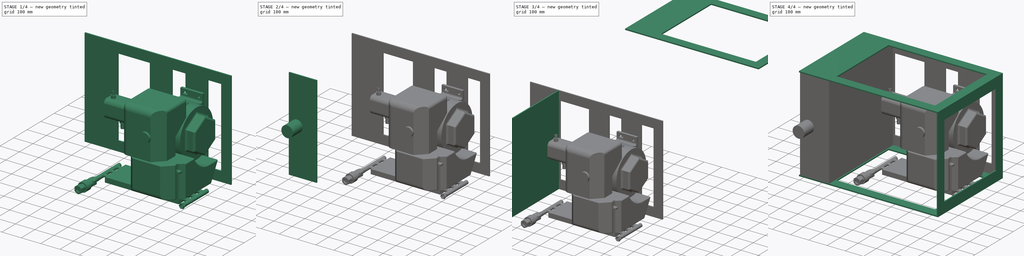
[diagram: build sequence overview — one tinted view per stage of 4, left to right]
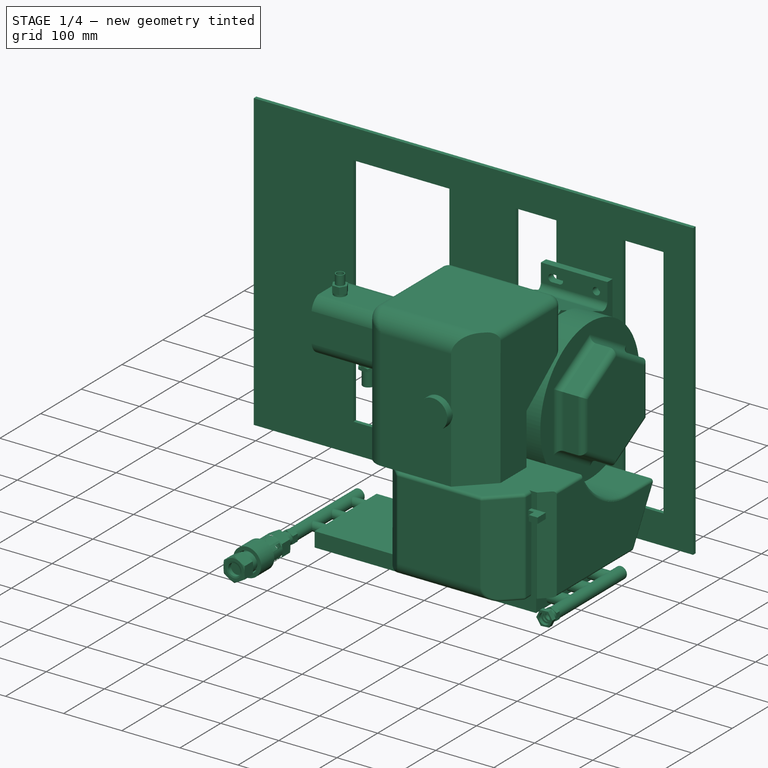
[diagram: stage 1 of 4 — iso view after this stage's code; geometry added in this stage tinted green]
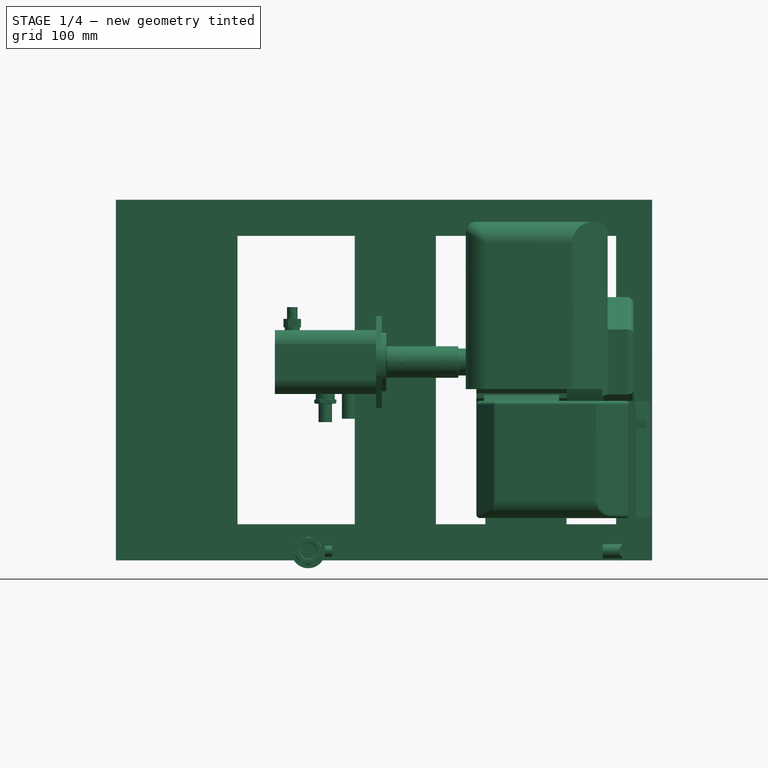
[diagram: stage 1 of 4 — front view after this stage's code; geometry added in this stage tinted green]
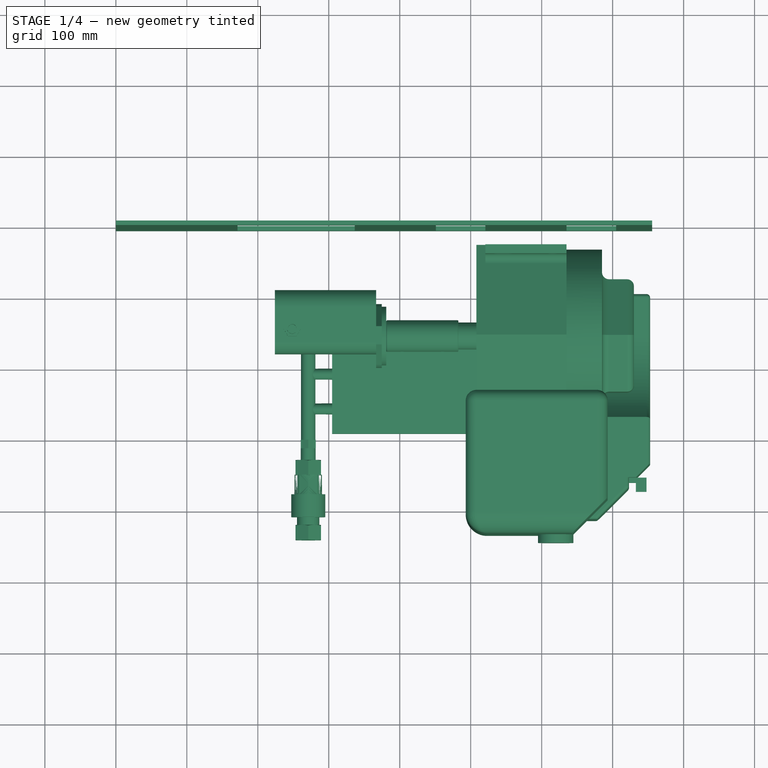
[diagram: stage 1 of 4 — top view after this stage's code; geometry added in this stage tinted green]
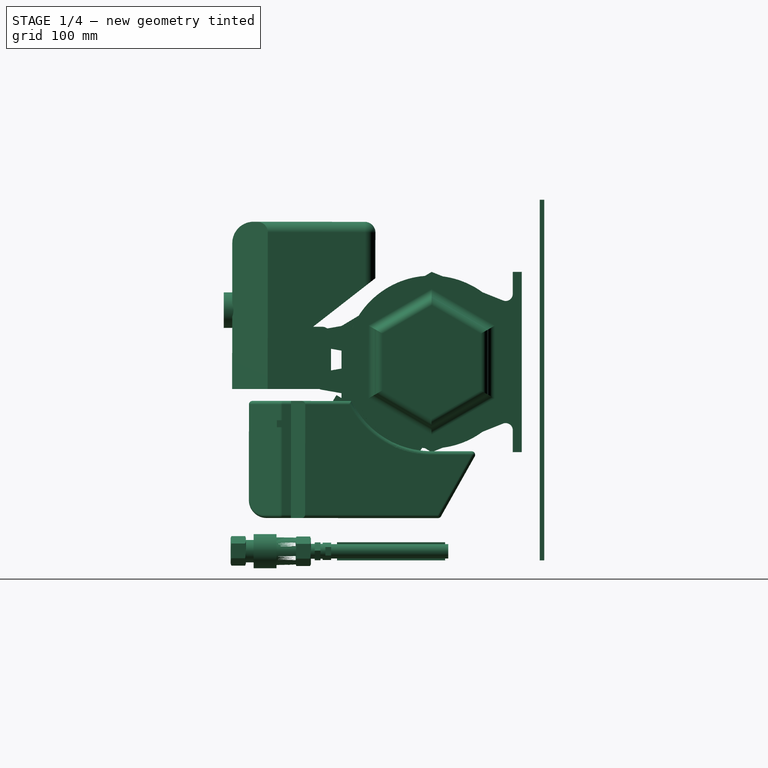
[diagram: stage 1 of 4 — right view after this stage's code; geometry added in this stage tinted green]
FCSTD DOCUMENT  (FreeCAD 0.16R6712 (Git))
Label: powercubeframe
License: All rights reserved
LicenseURL: http://en.wikipedia.org/wiki/All_rights_reserved
objects: App::FeaturePython×44, Part::Feature×11, Part::FeaturePython×7, Sketcher::SketchObject×4, PartDesign::Pad×4, Part::MultiFuse×2, Part::Cylinder×1
note: 33 computed .brp shape members not serialized (recipe doc carries the construction recipe); baked Part::Feature solids carry a one-line shape summary decoded from their .brp

FEATURE [App::FeaturePython] planeConstraint17  label="planeConstraint17 tank cap to top"  # a2plus constraint (typed FeaturePython)
  Object1 = Cylinder
  Object2 = Clone004
  SubElement1 = Face2
  SubElement2 = Face6
  Type = plane
  directionConstraint = 1
  offset = 0
FEATURE [Sketcher::SketchObject] Sketch003  label="Bottom mount"
  Placement = pos=(0,0,914.4) rot=(1,0,0;1.5708rad)
  sketch-geometry (23):
    g0: LineSegment StartX=-377.825 StartY=254 StartZ=0 EndX=377.825 EndY=254 EndZ=0
    g1: LineSegment StartX=377.825 StartY=254 StartZ=0 EndX=377.825 EndY=-254 EndZ=0
    g2: LineSegment StartX=377.825 StartY=-254 StartZ=0 EndX=-377.825 EndY=-254 EndZ=0
    g3: LineSegment StartX=257.175 StartY=203.2 StartZ=0 EndX=327.025 EndY=203.2 EndZ=0
    g4: LineSegment StartX=327.025 StartY=203.2 StartZ=0 EndX=327.025 EndY=-203.2 EndZ=0
    g5: LineSegment StartX=327.025 StartY=-203.2 StartZ=0 EndX=257.175 EndY=-203.2 EndZ=0
    g6: LineSegment StartX=257.175 StartY=-203.2 StartZ=0 EndX=257.175 EndY=203.2 EndZ=0
    g7: LineSegment StartX=-41.275 StartY=203.2 StartZ=0 EndX=-41.275 EndY=-203.2 EndZ=0
    g8: LineSegment [constr] StartX=327.025 StartY=203.2 StartZ=0 EndX=377.825 EndY=203.2 EndZ=0
    g9: LineSegment [constr] StartX=327.025 StartY=203.2 StartZ=0 EndX=327.025 EndY=254 EndZ=0
    g10: LineSegment [constr] StartX=327.025 StartY=-203.2 StartZ=0 EndX=327.025 EndY=-254 EndZ=0
    g11: LineSegment [constr] StartX=-41.275 StartY=-203.2 StartZ=0 EndX=-41.275 EndY=-254 EndZ=0
    g12: LineSegment StartX=73.025 StartY=203.2 StartZ=0 EndX=142.875 EndY=203.2 EndZ=0
    g13: LineSegment StartX=142.875 StartY=203.2 StartZ=0 EndX=142.875 EndY=-203.2 EndZ=0
    g14: LineSegment StartX=142.875 StartY=-203.2 StartZ=0 EndX=73.025 EndY=-203.2 EndZ=0
    g15: LineSegment StartX=73.025 StartY=-203.2 StartZ=0 EndX=73.025 EndY=203.2 EndZ=0
    g16: LineSegment [constr] StartX=142.875 StartY=203.2 StartZ=0 EndX=142.875 EndY=254 EndZ=0
    g17: LineSegment [constr] StartX=257.175 StartY=203.2 StartZ=0 EndX=142.875 EndY=203.2 EndZ=0
    g18: LineSegment [constr] StartX=73.025 StartY=203.2 StartZ=0 EndX=-41.275 EndY=203.2 EndZ=0
    g19: LineSegment StartX=-377.825 StartY=254 StartZ=0 EndX=-377.825 EndY=-254 EndZ=0
    g20: LineSegment StartX=-41.275 StartY=203.2 StartZ=0 EndX=-206.375 EndY=203.2 EndZ=0
    g21: LineSegment StartX=-41.275 StartY=-203.2 StartZ=0 EndX=-206.375 EndY=-203.2 EndZ=0
    g22: LineSegment StartX=-206.375 StartY=203.2 StartZ=0 EndX=-206.375 EndY=-203.2 EndZ=0
  constraints (68):
    c: Coincident(g0,g1)
    c: Coincident(g1,g2)
    c: Horizontal(g0)
    c: Vertical(g1)
    c: Symmetric(g2,g0,g-1)
    c: Equal(g2,g0)
    c: DistanceY(g2,g0) = 508
    c: DistanceX(g2,g2) = 755.65
    c: Coincident(g3,g4)
    c: Coincident(g4,g5)
    c: Coincident(g5,g6)
    c: Coincident(g6,g3)
    c: Horizontal(g5)
    c: Vertical(g4)
    c: Vertical(g6)
    c: Vertical(g7)
    c: Equal(g4,g6)
    c: Equal(g3,g5)
    c: Coincident(g8,g3)
    c: PointOnObject(g8,g1)
    c: Horizontal(g8)
    c: Coincident(g9,g3)
    c: PointOnObject(g9,g0)
    c: Vertical(g9)
    c: Coincident(g10,g4)
    c: PointOnObject(g10,g2)
    c: Vertical(g10)
    c: Coincident(g11,g7)
    c: PointOnObject(g11,g2)
    c: Vertical(g11)
    c: Equal(g7,g6)
    c: Equal(g11,g10)
    c: Equal(g10,g8)
    c: Equal(g8,g9)
    c: DistanceY(g11,g11) = 50.8
    c: Coincident(g12,g13)
    c: Coincident(g13,g14)
    c: Coincident(g14,g15)
    c: Coincident(g15,g12)
    c: Horizontal(g14)
    c: Vertical(g13)
    c: Equal(g12,g14)
    c: Equal(g14,g5)
    c: Equal(g13,g15)
    c: Equal(g15,g6)
    c: Coincident(g16,g12)
    c: PointOnObject(g16,g0)
    c: Vertical(g16)
    c: Equal(g16,g9)
    c: Coincident(g17,g3)
    c: Coincident(g17,g12)
    c: Coincident(g18,g12)
    c: Equal(g18,g17)
    c: DistanceX(g17,g17) = 114.3
    c: DistanceX(g3,g3) = 69.85
    c: Coincident(g19,g0)
    c: Coincident(g19,g2)
    c: Equal(g19,g1)
    c: Horizontal(g20)
    c: Coincident(g21,g7)
    c: Horizontal(g21)
    c: Coincident(g22,g20)
    c: Coincident(g22,g21)
    c: Vertical(g22)
    c: Coincident(g20,g7)
    c: Coincident(g7,g18)
    c: Equal(g20,g21)
    c: DistanceX(g2,g21) = 171.45
FEATURE [PartDesign::Pad] Pad003  label="Bottom Mount plate"
  Length = 6.35
  Length2 = 100
  Placement = pos=(0,0,914.4) rot=(1,0,0;1.5708rad)
  Sketch = -> Sketch003
  Type = 0
FEATURE [Part::FeaturePython] Clone006  label="Clone of Bottom Mount plate"  # Draft clone (typed FeaturePython)
  Objects = -> [Pad003]
  Placement = pos=(377.825,495.3,254) rot=(-1,0,0;1.5708rad)
  Scale = (1,1,1)
FEATURE [App::FeaturePython] planeConstraint14_mirror  label="planeConstraint14__Clone of tank inside to top of outside vert"  # a2plus constraint (typed FeaturePython)
  Object1 = Clone003
  Object2 = powercubeframeside01_01
  SubElement1 = Face3
  SubElement2 = Face3
  Type = plane
  directionConstraint = 0
  offset = 0
FEATURE [App::FeaturePython] planeConstraint14  label="planeConstraint14__tank inside wall vert"  # a2plus constraint (typed FeaturePython)
  Object1 = Clone003
  Object2 = powercubeframeside01_01
  SubElement1 = Face3
  SubElement2 = Face3
  Type = plane
  directionConstraint = 0
  offset = 0
FEATURE [App::FeaturePython] planeConstraint15  label="planeConstraint15__bottom horiz on X"  # a2plus constraint (typed FeaturePython)
  Object1 = Clone006
  Object2 = powercubeframeside01_01
  SubElement1 = Face1
  SubElement2 = Face1
  Type = plane
  directionConstraint = 0
  offset = 0
FEATURE [App::FeaturePython] planeConstraint15_mirror  label="planeConstraint15__Clone of Bottom Mount plate"  # a2plus constraint (typed FeaturePython)
  Object1 = Clone006
  Object2 = powercubeframeside01_01
  SubElement1 = Face1
  SubElement2 = Face1
  Type = plane
  directionConstraint = 0
  offset = 0
FEATURE [App::FeaturePython] planeConstraint16  label="planeConstraint16_bottom vert"  # a2plus constraint (typed FeaturePython)
  Object1 = Clone006
  Object2 = powercubeframeside01_01
  SubElement1 = Face17
  SubElement2 = Face4
  Type = plane
  directionConstraint = 1
  offset = 0
FEATURE [App::FeaturePython] planeConstraint16_mirror  label="planeConstraint16__Clone of Bottom Mount plate"  # a2plus constraint (typed FeaturePython)
  Object1 = Clone006
  Object2 = powercubeframeside01_01
  SubElement1 = Face17
  SubElement2 = Face4
  Type = plane
  directionConstraint = 1
  offset = 0
FEATURE [App::FeaturePython] planeConstraint18  label="planeConstraint18__tank end 20x20"  # a2plus constraint (typed FeaturePython)
  Object1 = Clone006
  Object2 = powercubeframeside01_01
  SubElement1 = Face4
  SubElement2 = Face5
  Type = plane
  directionConstraint = 0
  offset = 0
FEATURE [App::FeaturePython] planeConstraint18_mirror  label="planeConstraint18__Clone of Bottom Mount plate"  # a2plus constraint (typed FeaturePython)
  Object1 = Clone006
  Object2 = powercubeframeside01_01
  SubElement1 = Face4
  SubElement2 = Face5
  Type = plane
  directionConstraint = 0
  offset = 0
FEATURE [Part::Feature] PC_1708_coupler_002001  label="PC_1708_coupler_003"
  Placement = pos=(412,376.528,-425.373) rot=(0,-1,0;1.5708rad)
  shape: bbox 101.6 x 44.45 x 44.45 mm, 8 faces (baked)
FEATURE [Part::Feature] __2_to_3_4_NPT_HexNipple_01002001  label="__2_to_3_4_NPT_HexNipple_01004"
  Placement = pos=(177.9,431.328,-434.936) rot=(0,0.707107,0.707107;3.14159rad)
  shape: bbox 24.5 x 45 x 21.22 mm, 15 faces (baked)
FEATURE [Part::Feature] PC1708_log_splitter_hydraulic_pump_simple_002001  label="PC1708_Two Stage_Hydraulic_Pump002"
  Placement = pos=(342.1,376.528,-425.373) rot=(-0.57735,0.57735,0.57735;4.18879rad)
  shape: bbox 188.7 x 144.8 x 109.2 mm, 36 faces (baked)
FEATURE [Part::Feature] Barb_to_nptm_002001  label="Barb_to_nptm_003"
  Placement = pos=(224.4,344.228,-438.023) rot=(-0.57735,0.57735,0.57735;4.18879rad)
  shape: bbox 31.16 x 52.32 x 31.16 mm, 36 faces (baked)
FEATURE [Part::Feature] Xp16hp_002001  label="Xp16hp_003"
  Placement = pos=(342.1,554.2,-552.552) rot=(-0.000503,-0.000503,-1;1.5708rad)
  shape: bbox 340 x 417.8 x 420 mm, 199 faces (baked)
FEATURE [Part::MultiFuse] Fusion  label="Engine-adapter-pump"
  Placement = pos=(70.65,-82.55,-97.1278) rot=(1,0,0;1.5708rad)
  Shapes = -> [PC_1708_coupler_002001,PC1708_log_splitter_hydraulic_pump_simple_002001,Xp16hp_002001,Barb_to_nptm_002001,__2_to_3_4_NPT_HexNipple_01002001]
FEATURE [App::FeaturePython] planeConstraint19  label="planeConstraint19__tank end 20x20"  # a2plus constraint (typed FeaturePython)
  Object1 = Fusion
  Object2 = powercubeframeside01_01
  SubElement1 = Face107
  SubElement2 = Face4
  Type = plane
  directionConstraint = 0
  offset = -25.4
FEATURE [App::FeaturePython] planeConstraint19_mirror  label="planeConstraint19_Enginemount bottom to primary tank wall bottom vert"  # a2plus constraint (typed FeaturePython)
  Object1 = Fusion
  Object2 = powercubeframeside01_01
  SubElement1 = Face107
  SubElement2 = Face4
  Type = plane
  directionConstraint = 0
  offset = -25.4
FEATURE [App::FeaturePython] planeConstraint20  label="planeConstraint20__tank end 20x20"  # a2plus constraint (typed FeaturePython)
  Object1 = Fusion
  Object2 = powercubeframeside01_01
  SubElement1 = Face89
  SubElement2 = Face2
  Type = plane
  directionConstraint = 0
  offset = 501.65
FEATURE [App::FeaturePython] planeConstraint20_mirror  label="engine face to inside of primary tank wall"  # a2plus constraint (typed FeaturePython)
  Object1 = Fusion
  Object2 = powercubeframeside01_01
  SubElement1 = Face89
  SubElement2 = Face2
  Type = plane
  directionConstraint = 0
  offset = 501.65
FEATURE [App::FeaturePython] planeConstraint21  label="planeConstraint21__tank end 20x20"  # a2plus constraint (typed FeaturePython)
  Object1 = Fusion
  Object2 = powercubeframeside01_01
  SubElement1 = Face147
  SubElement2 = Face5
  Type = plane
  directionConstraint = 0
  offset = 152.4
FEATURE [App::FeaturePython] planeConstraint21_mirror  label="engine mount right side to primary tank wall rt side"  # a2plus constraint (typed FeaturePython)
  Object1 = Fusion
  Object2 = powercubeframeside01_01
  SubElement1 = Face147
  SubElement2 = Face5
  Type = plane
  directionConstraint = 0
  offset = 152.4
FEATURE [Part::Feature] __4_quick_coupler_female_002004  label="__4_quick_coupler_female_006"
  Placement = pos=(412.332,583.051,-73.2765) rot=(0,0,1;0rad)
  shape: bbox 80.57 x 48 x 48 mm, 55 faces (baked)
FEATURE [Part::Feature] __4_quick_coupler_Male_002002  label="__4_quick_coupler_Male_002004"
  Placement = pos=(408.614,583.051,-73.2765) rot=(0,0,1;0rad)
  shape: bbox 63.48 x 41.57 x 41.57 mm, 38 faces (baked)
FEATURE [Part::Feature] __4_quick_coupler_Male_002003  label="__4_quick_coupler_Male_004"
  Placement = pos=(408.614,583.051,-73.2765) rot=(0,0,1;0rad)
  shape: bbox 63.48 x 41.57 x 41.57 mm, 38 faces (baked)
FEATURE [Part::Feature] PC_1240_cooler_003002  label="PC_1240_cooler_005"
  Placement = pos=(189,142.05,-73.1) rot=(0,1,0;3.14159rad)
  shape: bbox 165.1 x 471.3 x 25.4 mm, 24 faces (baked)
FEATURE [Part::Feature] __2_to_3_4_NPT_HexNipple_01003002  label="__2_to_3_4_NPT_HexNipple_01006"
  Placement = pos=(287.55,583.05,-73.1) rot=(0,-1,0;1.5708rad)
  shape: bbox 45 x 21.22 x 24.5 mm, 15 faces (baked)
FEATURE [Part::Feature] __2_to_3_4_swivel_002002  label="__2_to_3_4_swivel_004"
  Placement = pos=(285.55,132.05,-73.1) rot=(0,1,0;1.5708rad)
  shape: bbox 41.5 x 27.93 x 25.17 mm, 26 faces (baked)
FEATURE [Part::MultiFuse] Fusion001  label="1240_cooler_and_fittings"
  Placement = pos=(854.1,482.75,-60.4) rot=(-0.707107,0.707107,0;3.14159rad)
  Shapes = -> [__4_quick_coupler_Male_002002,__4_quick_coupler_Male_002003,PC_1240_cooler_003002,__2_to_3_4_NPT_HexNipple_01003002,__2_to_3_4_swivel_002002,__4_quick_coupler_female_002004]
FEATURE [App::FeaturePython] planeConstraint22  label="planeConstraint22__tank end 20x20"  # a2plus constraint (typed FeaturePython)
  Object1 = Fusion001
  Object2 = powercubeframeside01_01
  SubElement1 = Face44
  SubElement2 = Face3
  Type = plane
  directionConstraint = 0
  offset = 368.3
FEATURE [App::FeaturePython] planeConstraint22_mirror  label="cooler top to primary tank wall top vert"  # a2plus constraint (typed FeaturePython)
  Object1 = Fusion001
  Object2 = powercubeframeside01_01
  SubElement1 = Face44
  SubElement2 = Face3
  Type = plane
  directionConstraint = 0
  offset = 368.3
FEATURE [App::FeaturePython] planeConstraint23  label="planeConstraint23__tank end 20x20"  # a2plus constraint (typed FeaturePython)
  Object1 = Fusion001
  Object2 = powercubeframeside01_01
  SubElement1 = Face42
  SubElement2 = Face1
  Type = plane
  directionConstraint = 1
  offset = -304.8
FEATURE [App::FeaturePython] planeConstraint23_mirror  label="planeConstraint23__1240_cooler_and_fittings"  # a2plus constraint (typed FeaturePython)
  Object1 = Fusion001
  Object2 = powercubeframeside01_01
  SubElement1 = Face42
  SubElement2 = Face1
  Type = plane
  directionConstraint = 1
  offset = -304.8
FEATURE [App::FeaturePython] planeConstraint24  label="planeConstraint24__tank end 20x20"  # a2plus constraint (typed FeaturePython)
  Object1 = Fusion001
  Object2 = powercubeframeside01_01
  SubElement1 = Face41
  SubElement2 = Face5
  Type = plane
  directionConstraint = 1
  offset = 25.4
FEATURE [App::FeaturePython] planeConstraint24_mirror  label="planeConstraint24__1240_cooler_and_fittings"  # a2plus constraint (typed FeaturePython)
  Object1 = Fusion001
  Object2 = powercubeframeside01_01
  SubElement1 = Face41
  SubElement2 = Face5
  Type = plane
  directionConstraint = 1
  offset = 25.4
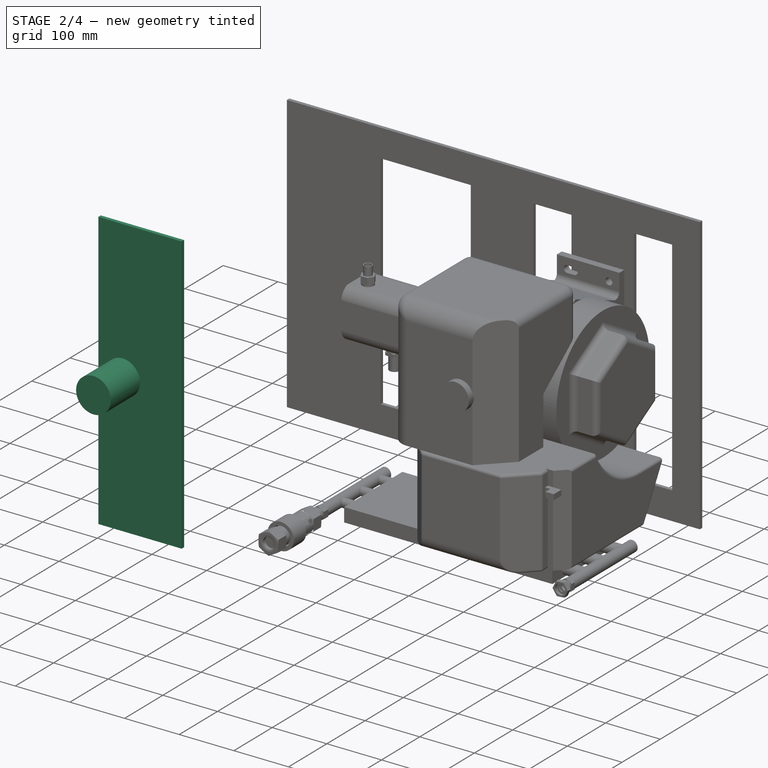
[diagram: stage 2 of 4 — iso view after this stage's code; geometry added in this stage tinted green]
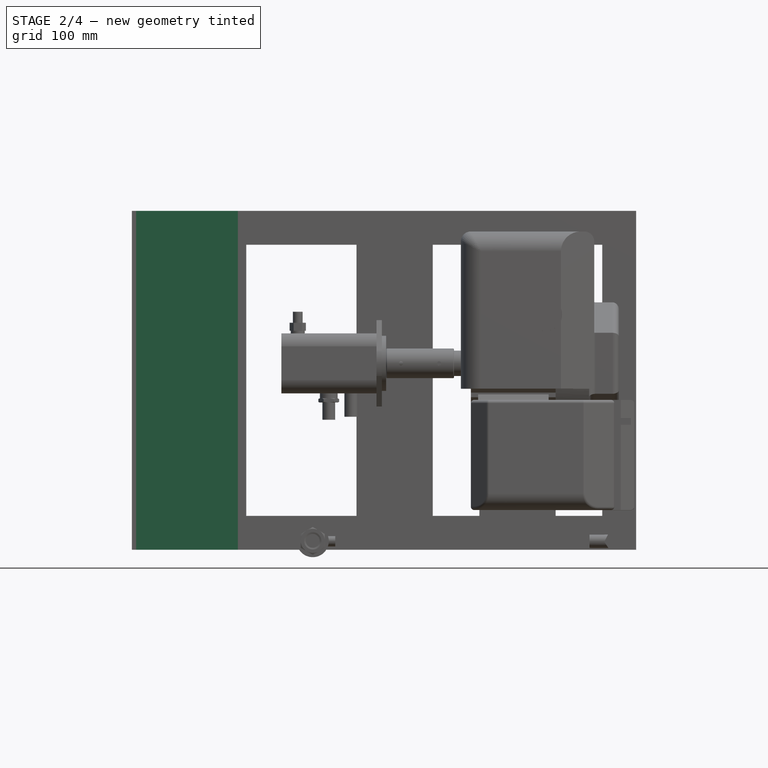
[diagram: stage 2 of 4 — front view after this stage's code; geometry added in this stage tinted green]
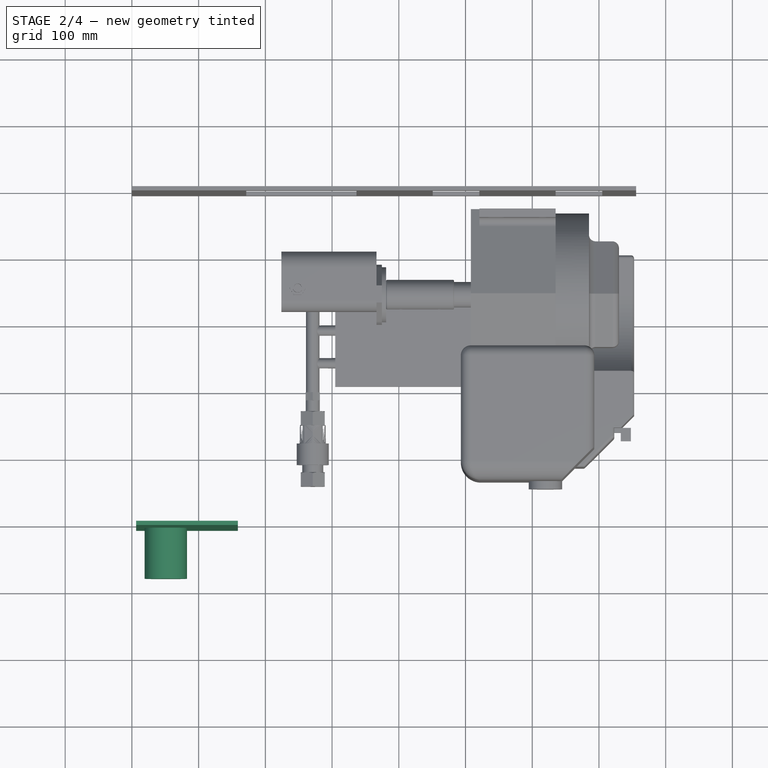
[diagram: stage 2 of 4 — top view after this stage's code; geometry added in this stage tinted green]
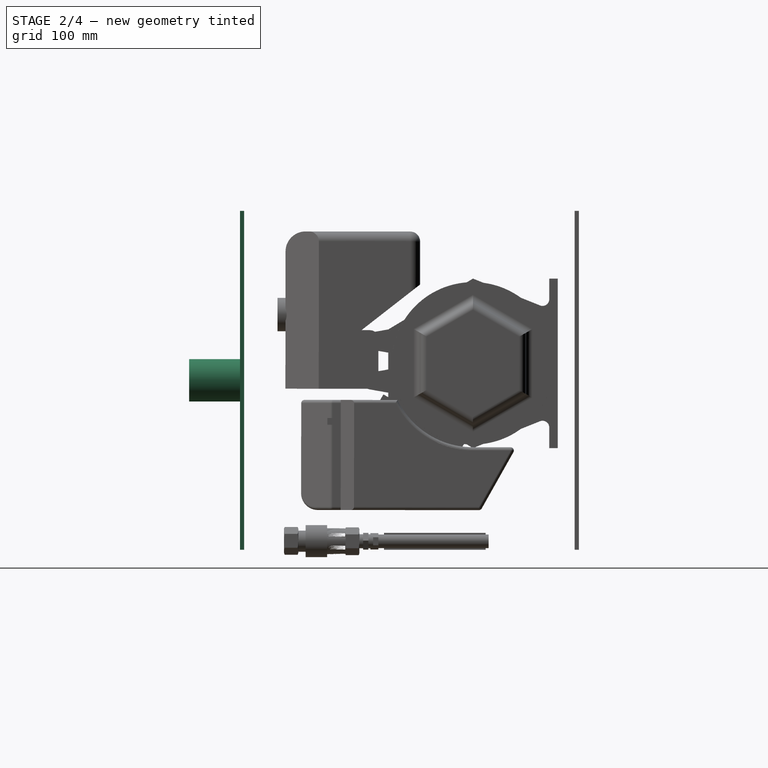
[diagram: stage 2 of 4 — right view after this stage's code; geometry added in this stage tinted green]
FEATURE [App::FeaturePython] planeConstraint10  label="planeConstraint10 tank inside wall to horiz on X"  # a2plus constraint (typed FeaturePython)
  Object1 = Clone003
  Object2 = Clone
  SubElement1 = Face2
  SubElement2 = Face8
  Type = plane
  directionConstraint = 0
  offset = -6.35
FEATURE [Sketcher::SketchObject] Sketch002  label="tank top001"
  Placement = pos=(0,304.8,914.4) rot=(1,0,0;1.5708rad)
  sketch-geometry (4):
    g0: LineSegment StartX=-76.2 StartY=254 StartZ=0 EndX=76.2 EndY=254 EndZ=0
    g1: LineSegment StartX=76.2 StartY=254 StartZ=0 EndX=76.2 EndY=-254 EndZ=0
    g2: LineSegment StartX=76.2 StartY=-254 StartZ=0 EndX=-76.2 EndY=-254 EndZ=0
    g3: LineSegment StartX=-76.2 StartY=-254 StartZ=0 EndX=-76.2 EndY=254 EndZ=0
  constraints (13):
    c: Coincident(g0,g1)
    c: Coincident(g1,g2)
    c: Coincident(g2,g3)
    c: Coincident(g3,g0)
    c: Horizontal(g0)
    c: Horizontal(g2)
    c: Vertical(g1)
    c: Vertical(g3)
    c: DistanceX(g0,g0) = 152.4  'tank depth'
    c: DistanceY(g3,g3) = 508  'tank width'
    c: Equal(g3,g1)
    c: Equal(g0,g2)
    c: Symmetric(g0,g1,g-1)
FEATURE [PartDesign::Pad] Pad002  label="tank top"
  Length = 6.35
  Length2 = 100
  Placement = pos=(0,304.8,914.4) rot=(1,0,0;1.5708rad)
  Sketch = -> Sketch002
  Type = 0
FEATURE [Part::FeaturePython] Clone004  label="Clone of tank top/bottom001"  # Draft clone (typed FeaturePython)
  Objects = -> [Pad002]
  Placement = pos=(82.55,0,254) rot=(1,0,0;1.5708rad)
  Scale = (1,1,1)
FEATURE [App::FeaturePython] planeConstraint11  label="planeConstraint11 tank top to side"  # a2plus constraint (typed FeaturePython)
  Object1 = Clone004
  Object2 = Clone002
  SubElement1 = Face3
  SubElement2 = Face10
  Type = plane
  directionConstraint = 1
  offset = 0
FEATURE [App::FeaturePython] planeConstraint12  label="planeConstraint12__tank end 20x20"  # a2plus constraint (typed FeaturePython)
  Object1 = Clone004
  Object2 = powercubeframeside01_01
  SubElement1 = Face4
  SubElement2 = Face2
  Type = plane
  directionConstraint = 1
  offset = 0
FEATURE [App::FeaturePython] planeConstraint12_mirror  label="planeConstraint12__Clone of tank top/bottom001"  # a2plus constraint (typed FeaturePython)
  Object1 = Clone004
  Object2 = powercubeframeside01_01
  SubElement1 = Face4
  SubElement2 = Face2
  Type = plane
  directionConstraint = 1
  offset = 0
FEATURE [App::FeaturePython] planeConstraint13  label="planeConstraint13__tank end 20x20"  # a2plus constraint (typed FeaturePython)
  Object1 = Clone004
  Object2 = powercubeframeside01_01
  SubElement1 = Face6
  SubElement2 = Face3
  Type = plane
  directionConstraint = 0
  offset = 0
FEATURE [App::FeaturePython] planeConstraint13_mirror  label="planeConstraint13__Clone of tank top/bottom001"  # a2plus constraint (typed FeaturePython)
  Object1 = Clone004
  Object2 = powercubeframeside01_01
  SubElement1 = Face6
  SubElement2 = Face3
  Type = plane
  directionConstraint = 0
  offset = 0
FEATURE [Part::Cylinder] Cylinder  label="tank cap"
  Angle = 360
  Height = 76.2
  Placement = pos=(50.8,-82.55,254) rot=(-1,0,0;1.5708rad)
  Radius = 31.75
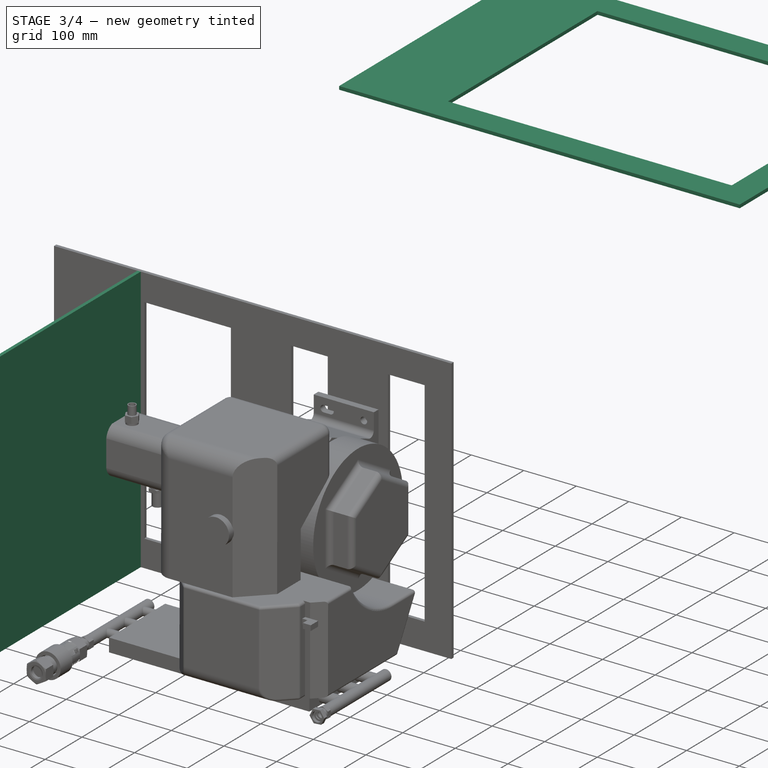
[diagram: stage 3 of 4 — iso view after this stage's code; geometry added in this stage tinted green]
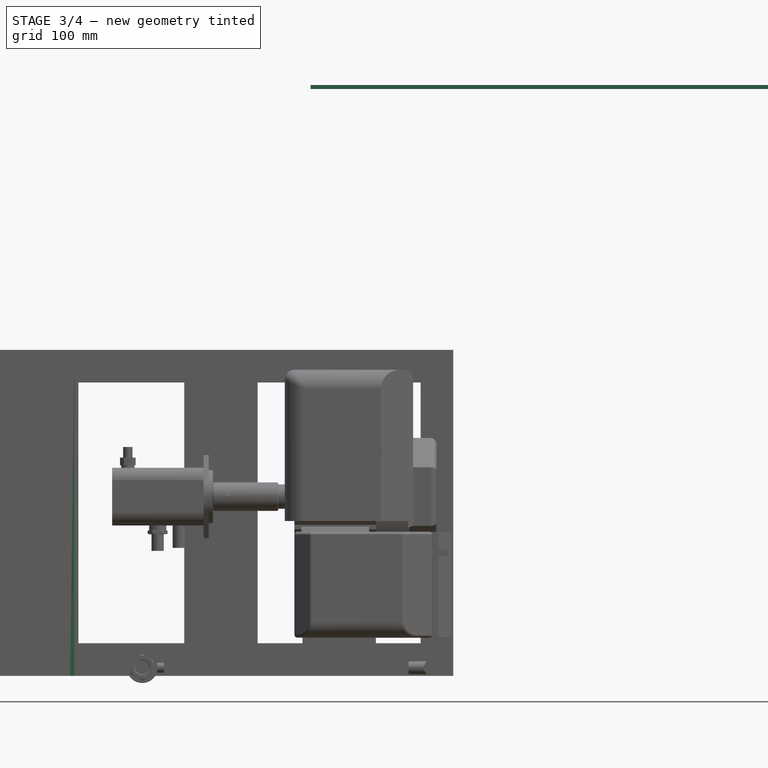
[diagram: stage 3 of 4 — front view after this stage's code; geometry added in this stage tinted green]
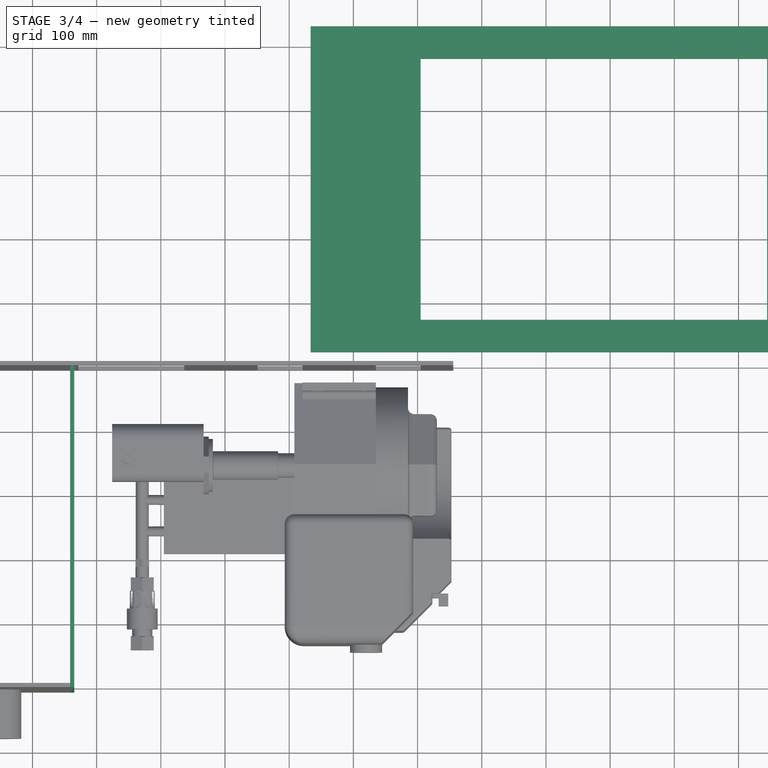
[diagram: stage 3 of 4 — top view after this stage's code; geometry added in this stage tinted green]
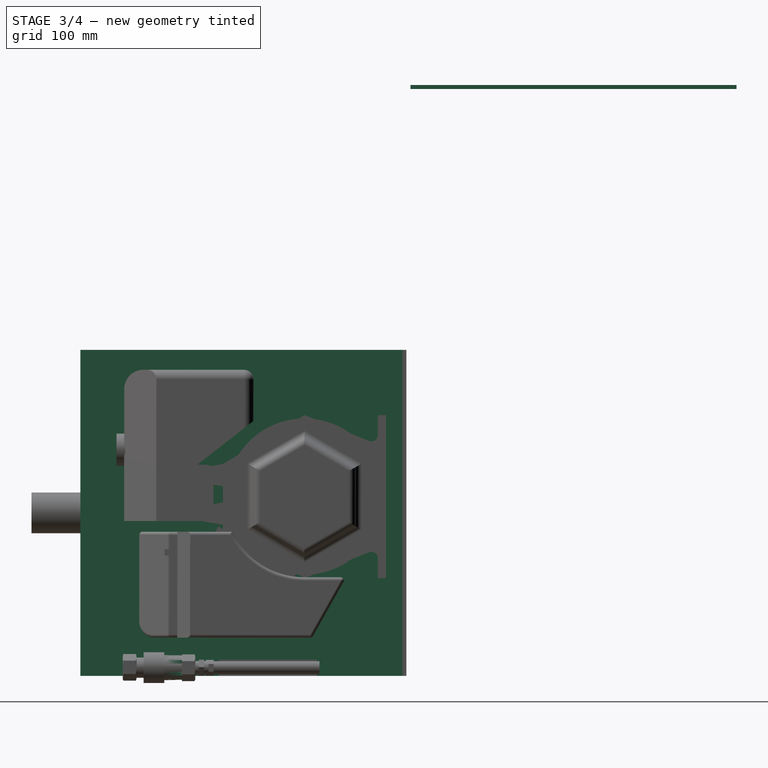
[diagram: stage 3 of 4 — right view after this stage's code; geometry added in this stage tinted green]
FEATURE [Sketcher::SketchObject] Sketch  label="20x30in"
  Placement = pos=(914.4,762,914.4) rot=(0,0,1;0rad)
  sketch-geometry (8):
    g0: LineSegment StartX=-381 StartY=254 StartZ=0 EndX=381 EndY=254 EndZ=0
    g1: LineSegment StartX=381 StartY=254 StartZ=0 EndX=381 EndY=-254 EndZ=0
    g2: LineSegment StartX=381 StartY=-254 StartZ=0 EndX=-381 EndY=-254 EndZ=0
    g3: LineSegment StartX=-381 StartY=-254 StartZ=0 EndX=-381 EndY=254 EndZ=0
    g4: LineSegment StartX=-209.55 StartY=-203.2 StartZ=0 EndX=330.2 EndY=-203.2 EndZ=0
    g5: LineSegment StartX=330.2 StartY=-203.2 StartZ=0 EndX=330.2 EndY=203.2 EndZ=0
    g6: LineSegment StartX=330.2 StartY=203.2 StartZ=0 EndX=-209.55 EndY=203.2 EndZ=0
    g7: LineSegment StartX=-209.55 StartY=203.2 StartZ=0 EndX=-209.55 EndY=-203.2 EndZ=0
  constraints (26):
    c: Coincident(g0,g1)
    c: Coincident(g1,g2)
    c: Coincident(g2,g3)
    c: Coincident(g3,g0)
    c: Horizontal(g0)
    c: Horizontal(g2)
    c: Vertical(g1)
    c: Vertical(g3)
    c: Equal(g3,g1)
    c: Equal(g0,g2)
    c: Symmetric(g0,g1,g-1)
    c: Coincident(g4,g5)
    c: Coincident(g5,g6)
    c: Coincident(g6,g7)
    c: Coincident(g7,g4)
    c: Horizontal(g4)
    c: Horizontal(g6)
    c: Vertical(g7)
    c: Equal(g7,g5)
    c: Equal(g6,g4)
    c: DistanceY(g3,g3) = 508
    c: DistanceX(g2,g2) = 762
    c: DistanceY(g7,g7) = 406.4
    c: DistanceX(g4,g1) = 50.8
    c: DistanceX(g2,g4) = 171.45
    c: Symmetric(g4,g5,g-1)
FEATURE [PartDesign::Pad] Pad  label="long side"
  Length = 6.35
  Length2 = 100
  Placement = pos=(914.4,762,914.4) rot=(0,0,1;0rad)
  Sketch = -> Sketch
  Type = 0
FEATURE [Part::FeaturePython] powercubeframeside01_01  label="tank end 20x20"  # a2plus imported part (geometry in sourceFile) (typed FeaturePython)
  Placement = pos=(0,-6.35,0) rot=(0,0,1;0rad)
  fixedPosition = true
  sourceFile = <userpath>/Documents/Power Cube v17.08/powercubeframeside01.fcstd
  timeLastImport = 1.51191e+09
  updateColors = true
FEATURE [App::FeaturePython] planeConstraint09  label="planeConstraint09_left side vert"  # a2plus constraint (typed FeaturePython)
  Object1 = Clone002
  Object2 = powercubeframeside01_01
  SubElement1 = Face3
  SubElement2 = Face3
  Type = plane
  directionConstraint = 1
  offset = 0
FEATURE [App::FeaturePython] planeConstraint09_mirror  label="planeConstraint09__Clone of long side001"  # a2plus constraint (typed FeaturePython)
  Object1 = Clone002
  Object2 = powercubeframeside01_01
  SubElement1 = Face3
  SubElement2 = Face3
  Type = plane
  directionConstraint = 1
  offset = 0
FEATURE [App::FeaturePython] planeConstraint07  label="planeConstraint07_left side assembly horiz"  # a2plus constraint (typed FeaturePython)
  Object1 = Clone002
  Object2 = powercubeframeside01_01
  SubElement1 = Face10
  SubElement2 = Face5
  Type = plane
  directionConstraint = 0
  offset = 0
FEATURE [App::FeaturePython] planeConstraint07_mirror  label="planeConstraint07__Clone of long side001"  # a2plus constraint (typed FeaturePython)
  Object1 = Clone002
  Object2 = powercubeframeside01_01
  SubElement1 = Face10
  SubElement2 = Face5
  Type = plane
  directionConstraint = 0
  offset = 0
FEATURE [App::FeaturePython] planeConstraint08  label="planeConstraint08_left side to tank horiz"  # a2plus constraint (typed FeaturePython)
  Object1 = Clone002
  Object2 = powercubeframeside01_01
  SubElement1 = Face4
  SubElement2 = Face1
  Type = plane
  directionConstraint = 0
  offset = 0
FEATURE [App::FeaturePython] planeConstraint08_mirror  label="planeConstraint08__Clone of long side001"  # a2plus constraint (typed FeaturePython)
  Object1 = Clone002
  Object2 = powercubeframeside01_01
  SubElement1 = Face4
  SubElement2 = Face1
  Type = plane
  directionConstraint = 0
  offset = 0
FEATURE [Part::FeaturePython] Clone003  label="Clone of tank end 20x20"  # Draft clone (typed FeaturePython)
  Objects = -> [powercubeframeside01_01]
  Placement = pos=(158.75,-6.35,0) rot=(0,0,1;0rad)
  Scale = (1,1,1)
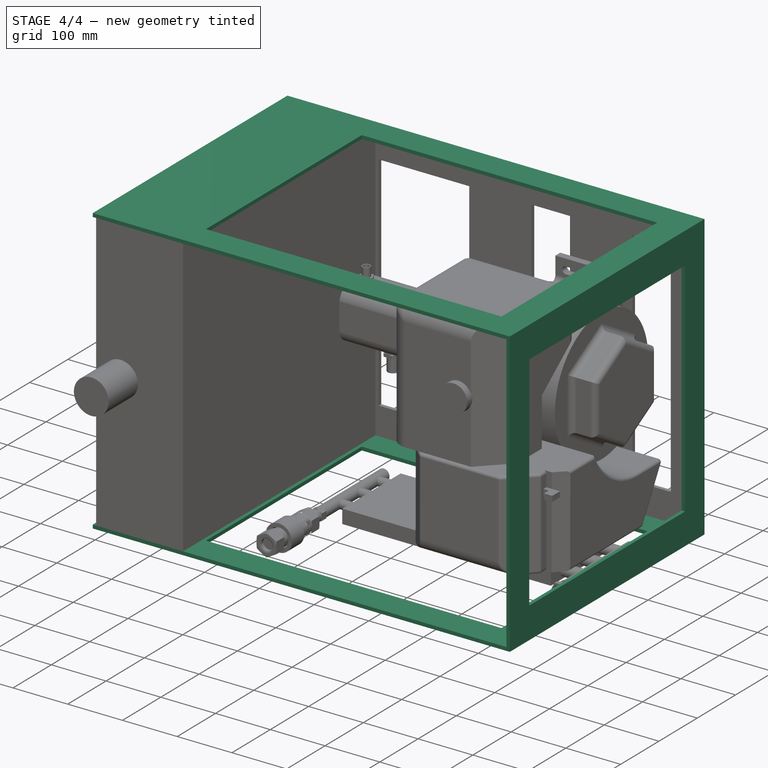
[diagram: stage 4 of 4 — iso view after this stage's code; geometry added in this stage tinted green]
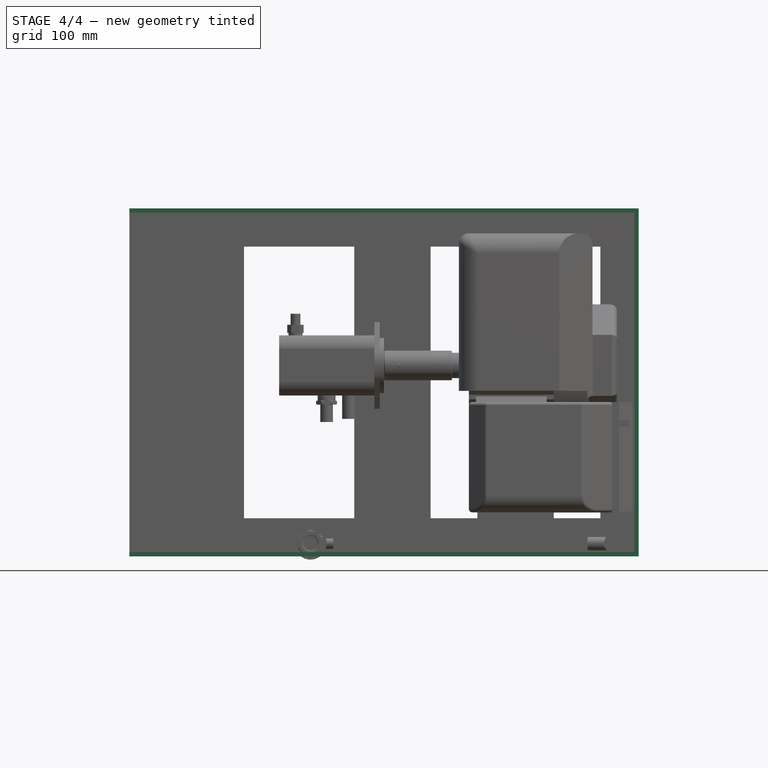
[diagram: stage 4 of 4 — front view after this stage's code; geometry added in this stage tinted green]
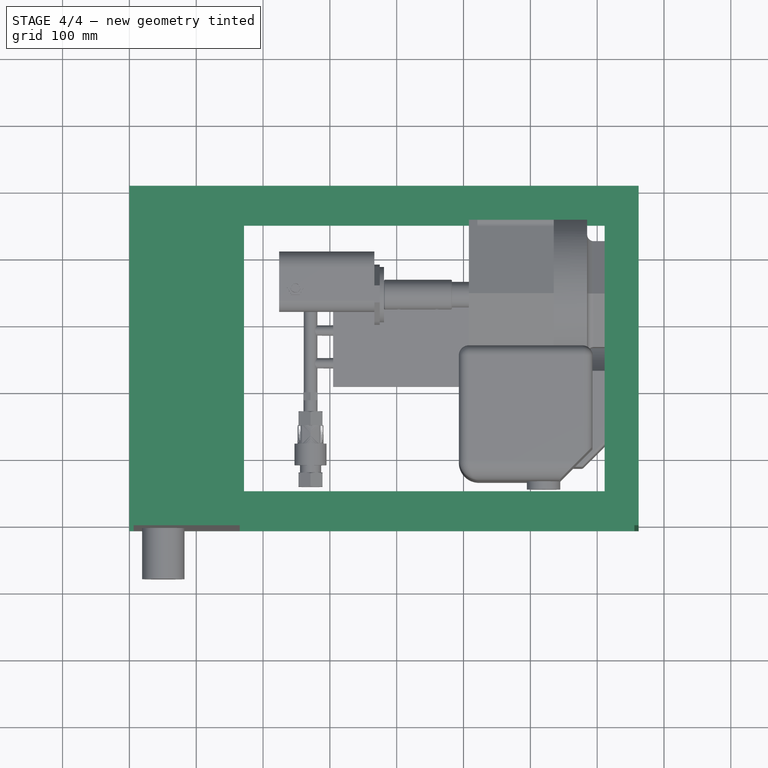
[diagram: stage 4 of 4 — top view after this stage's code; geometry added in this stage tinted green]
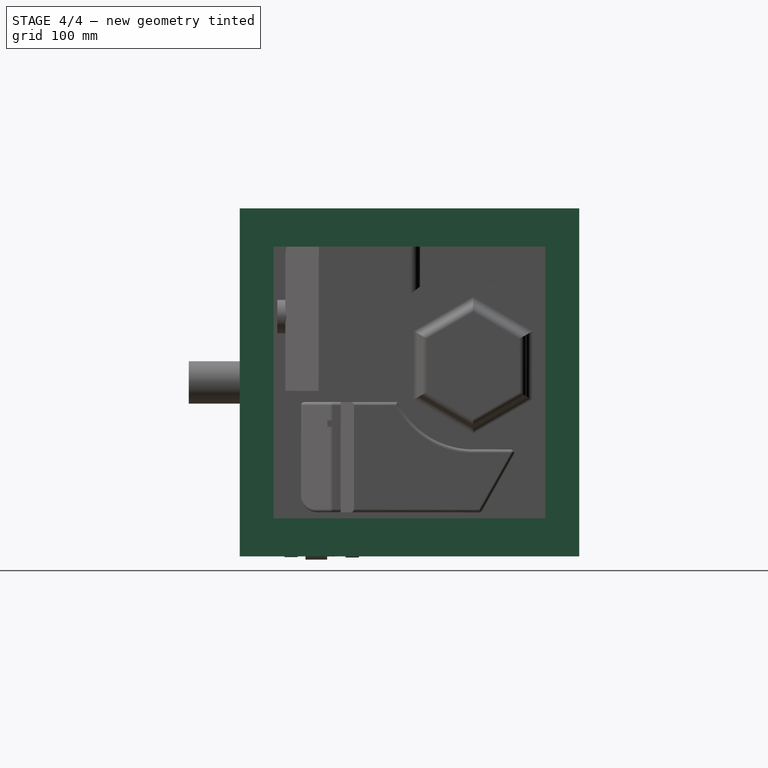
[diagram: stage 4 of 4 — right view after this stage's code; geometry added in this stage tinted green]
FEATURE [Sketcher::SketchObject] Sketch001  label="20x20in"
  Placement = pos=(914.4,1422.4,914.4) rot=(0.57735,0.57735,0.57735;2.0944rad)
  sketch-geometry (8):
    g0: LineSegment StartX=-254 StartY=254 StartZ=0 EndX=254 EndY=254 EndZ=0
    g1: LineSegment StartX=254 StartY=254 StartZ=0 EndX=254 EndY=-254 EndZ=0
    g2: LineSegment StartX=254 StartY=-254 StartZ=0 EndX=-254 EndY=-254 EndZ=0
    g3: LineSegment StartX=-254 StartY=-254 StartZ=0 EndX=-254 EndY=254 EndZ=0
    g4: LineSegment StartX=-203.2 StartY=203.2 StartZ=0 EndX=203.2 EndY=203.2 EndZ=0
    g5: LineSegment StartX=203.2 StartY=203.2 StartZ=0 EndX=203.2 EndY=-203.2 EndZ=0
    g6: LineSegment StartX=203.2 StartY=-203.2 StartZ=0 EndX=-203.2 EndY=-203.2 EndZ=0
    g7: LineSegment StartX=-203.2 StartY=-203.2 StartZ=0 EndX=-203.2 EndY=203.2 EndZ=0
  constraints (26):
    c: Coincident(g0,g1)
    c: Coincident(g1,g2)
    c: Coincident(g2,g3)
    c: Coincident(g3,g0)
    c: Horizontal(g0)
    c: Horizontal(g2)
    c: Vertical(g1)
    c: Vertical(g3)
    c: Equal(g0,g3)
    c: Equal(g3,g2)
    c: Equal(g2,g1)
    c: DistanceX(g0,g0) = 508  'outer edge'
    c: Symmetric(g2,g0,g-1)
    c: Coincident(g4,g5)
    c: Coincident(g5,g6)
    c: Coincident(g6,g7)
    c: Coincident(g7,g4)
    c: Horizontal(g4)
    c: Horizontal(g6)
    c: Vertical(g5)
    c: Vertical(g7)
    c: Equal(g4,g7)
    c: Equal(g7,g6)
    c: Equal(g6,g5)
    c: DistanceX(g4,g4) = 406.4  'inner edge'
    c: Symmetric(g4,g5,g-1)
FEATURE [PartDesign::Pad] Pad001  label="engine end side"
  Length = 6.35
  Length2 = 100
  Placement = pos=(914.4,1422.4,914.4) rot=(0.57735,0.57735,0.57735;2.0944rad)
  Sketch = -> Sketch001
  Type = 0
FEATURE [Part::FeaturePython] Clone  label="Clone of long side"  # Draft clone (typed FeaturePython)
  Objects = -> [Pad]
  Placement = pos=(381,247.65,508) rot=(0,0,1;0rad)
  Scale = (1,1,1)
FEATURE [Part::FeaturePython] Clone001  label="Clone of engine end side"  # Draft clone (typed FeaturePython)
  Objects = -> [Pad001]
  Placement = pos=(755.65,247.65,254) rot=(0.57735,0.57735,0.57735;2.0944rad)
  Scale = (1,1,1)
FEATURE [App::FeaturePython] planeConstraint01  label="planeConstraint01__tank end 20x20 Right side horizontal"  # a2plus constraint (typed FeaturePython)
  Object1 = Clone
  Object2 = powercubeframeside01_01
  SubElement1 = Face9
  SubElement2 = Face6
  Type = plane
  directionConstraint = 0
  offset = 0
FEATURE [App::FeaturePython] planeConstraint01_mirror  label="planeConstraint01_left side horiz on Z"  # a2plus constraint (typed FeaturePython)
  Object1 = Clone
  Object2 = powercubeframeside01_01
  SubElement1 = Face9
  SubElement2 = Face6
  Type = plane
  directionConstraint = 0
  offset = 0
FEATURE [App::FeaturePython] planeConstraint02  label="planeConstraint02__tank end 20x20 Rt side vertical"  # a2plus constraint (typed FeaturePython)
  Object1 = Clone
  Object2 = powercubeframeside01_01
  SubElement1 = Face1
  SubElement2 = Face4
  Type = plane
  directionConstraint = 0
  offset = 6.35
FEATURE [App::FeaturePython] planeConstraint02_mirror  label="planeConstraint02__Clone of long side"  # a2plus constraint (typed FeaturePython)
  Object1 = Clone
  Object2 = powercubeframeside01_01
  SubElement1 = Face1
  SubElement2 = Face4
  Type = plane
  directionConstraint = 0
  offset = 6.35
FEATURE [App::FeaturePython] planeConstraint03  label="planeConstraint03__tank end 20x20 horiz"  # a2plus constraint (typed FeaturePython)
  Object1 = Clone
  Object2 = powercubeframeside01_01
  SubElement1 = Face4
  SubElement2 = Face1
  Type = plane
  directionConstraint = 0
  offset = 0
FEATURE [App::FeaturePython] planeConstraint03_mirror  label="planeConstraint03__Clone of long side"  # a2plus constraint (typed FeaturePython)
  Object1 = Clone
  Object2 = powercubeframeside01_01
  SubElement1 = Face4
  SubElement2 = Face1
  Type = plane
  directionConstraint = 0
  offset = 0
FEATURE [App::FeaturePython] planeConstraint04  label="planeConstraint04_engine end horiz"  # a2plus constraint (typed FeaturePython)
  Object1 = Clone001
  Object2 = powercubeframeside01_01
  SubElement1 = Face3
  SubElement2 = Face5
  Type = plane
  directionConstraint = 1
  offset = 0
FEATURE [App::FeaturePython] planeConstraint04_mirror  label="planeConstraint04__Clone of engine end side"  # a2plus constraint (typed FeaturePython)
  Object1 = Clone001
  Object2 = powercubeframeside01_01
  SubElement1 = Face3
  SubElement2 = Face5
  Type = plane
  directionConstraint = 1
  offset = 0
FEATURE [App::FeaturePython] planeConstraint05  label="planeConstraint05_engine end vert"  # a2plus constraint (typed FeaturePython)
  Object1 = Clone001
  Object2 = powercubeframeside01_01
  SubElement1 = Face2
  SubElement2 = Face4
  Type = plane
  directionConstraint = 0
  offset = 6.35
FEATURE [App::FeaturePython] planeConstraint05_mirror  label="planeConstraint05__Clone of engine end side"  # a2plus constraint (typed FeaturePython)
  Object1 = Clone001
  Object2 = powercubeframeside01_01
  SubElement1 = Face2
  SubElement2 = Face4
  Type = plane
  directionConstraint = 0
  offset = 6.35
FEATURE [App::FeaturePython] planeConstraint06  label="planeConstraint06_Length to tank horiz"  # a2plus constraint (typed FeaturePython)
  Object1 = Clone001
  Object2 = Clone
  SubElement1 = Face10
  SubElement2 = Face2
  Type = plane
  directionConstraint = 0
  offset = 0
FEATURE [Part::FeaturePython] Clone002  label="Clone of long side001"  # Draft clone (typed FeaturePython)
  Objects = -> [Pad]
  Placement = pos=(381,247.65,-6.35) rot=(0,0,1;0rad)
  Scale = (1,1,1)
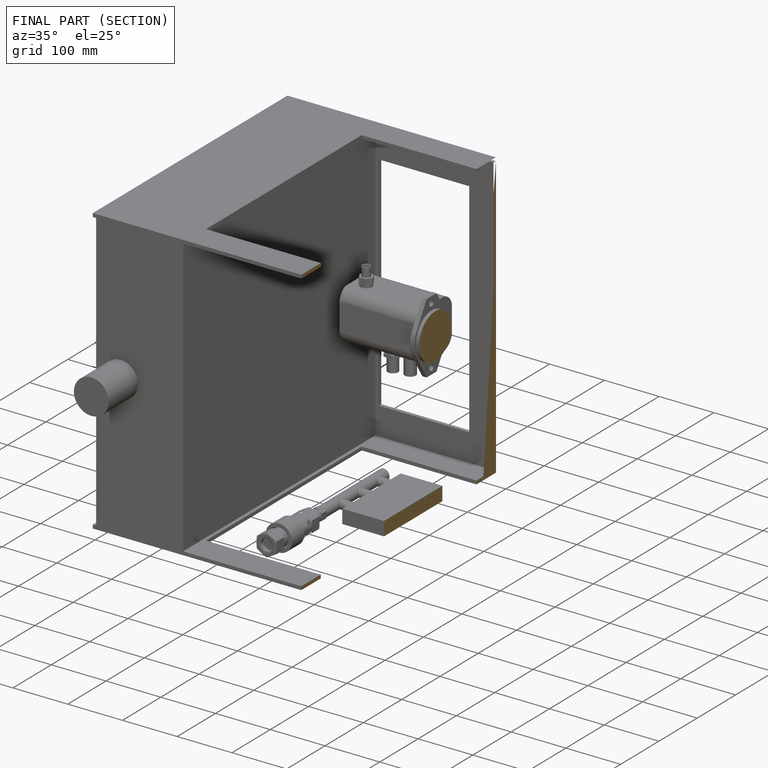
[diagram: finished part — half-section view (interior)]
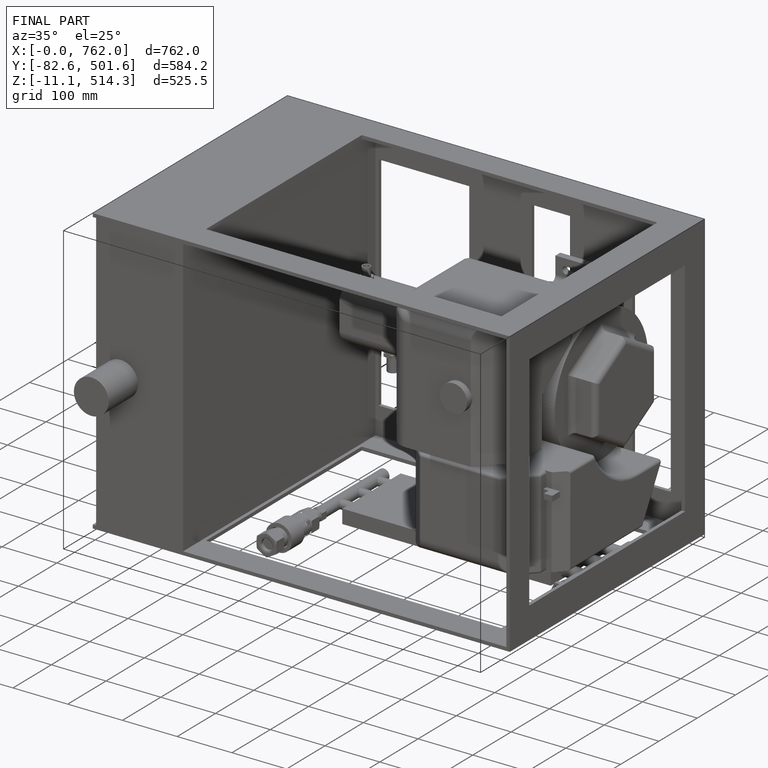
[diagram: finished part — iso view with bounding-box wireframe]
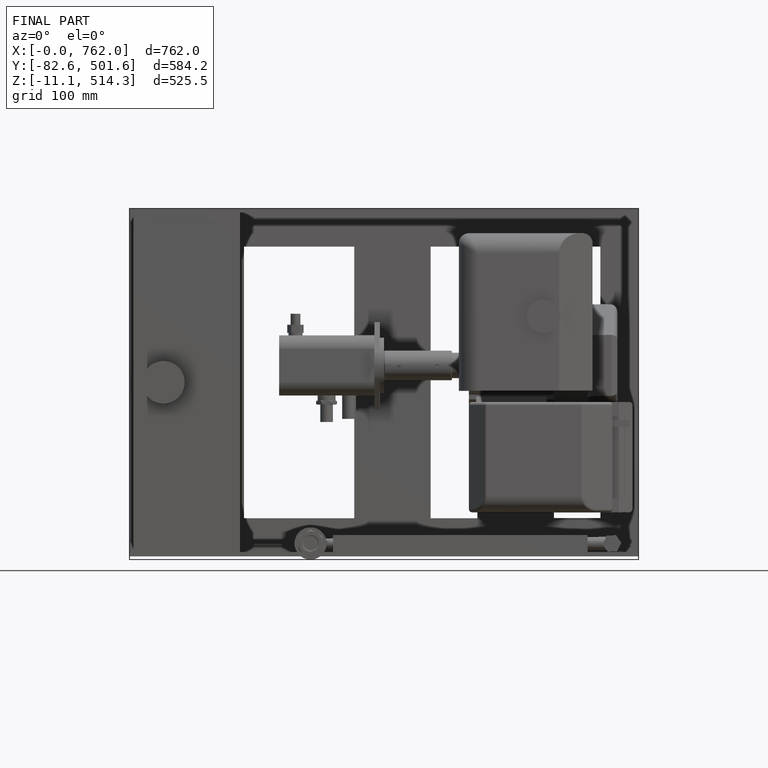
[diagram: finished part — front view with bounding-box wireframe]
